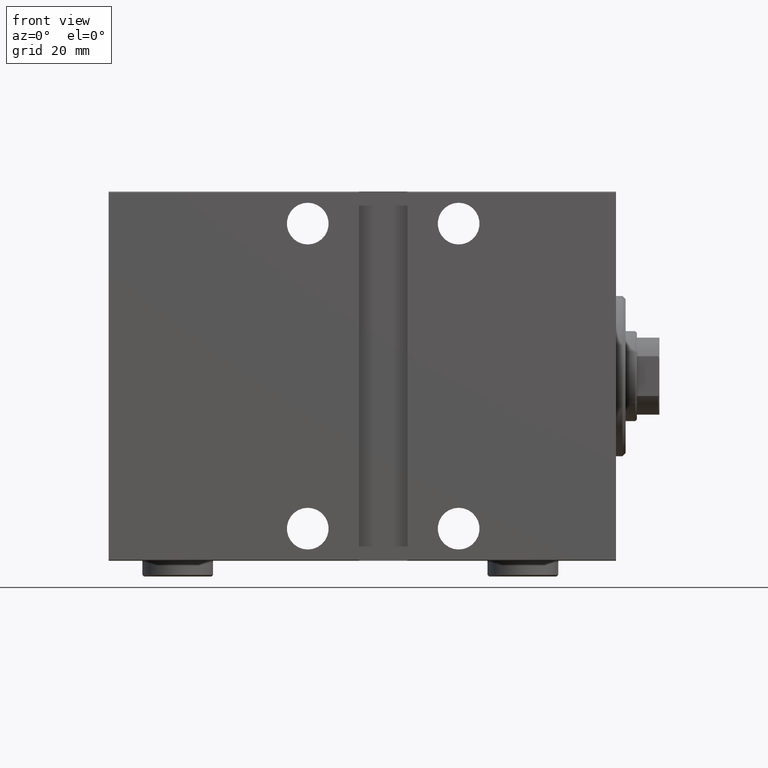
[diagram: clean part render]
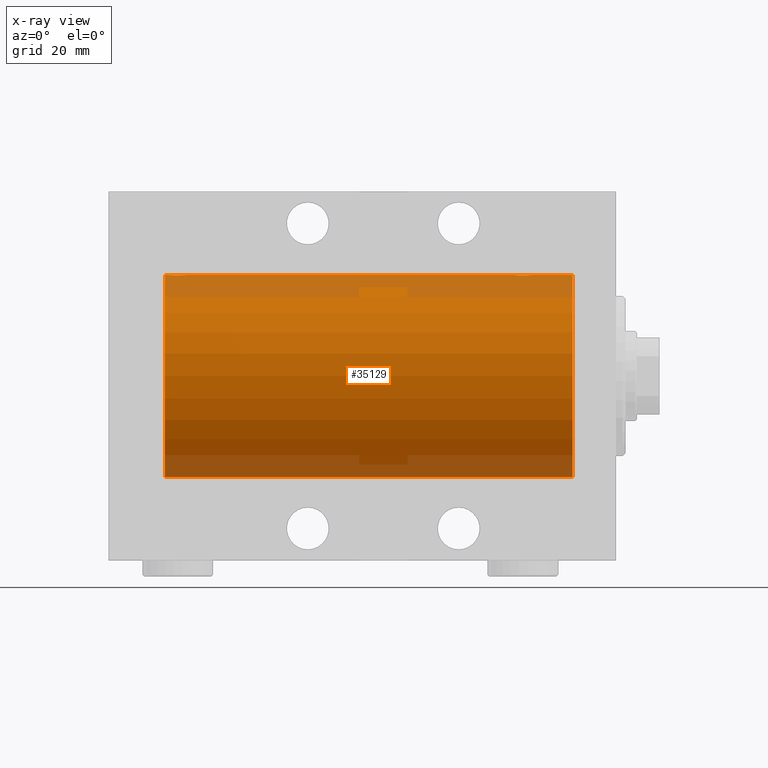
[diagram: x-ray — body ghosted, one internal face saturated and labeled with its STEP entity id]
A machine part, front view, then the same camera in x-ray: the body is ghosted and one INTERNAL B-rep face — a face not visible from any outside direction — is saturated and labeled: STEP entity #35129.
In plain terms, the highlighted cylindrical surface (partial cylindrical patch) has radius 31.5 mm, axis along (1, 0, -0).
Its self-contained STEP definition (entity closure, byte-faithful):
#347 = CARTESIAN_POINT ( 'NONE',  ( 133.8976413038693920, 1.505293155307504183, 31.46443304312125022 ) ) ;
#661 = CARTESIAN_POINT ( 'NONE',  ( 140.5000000000000000, 0.000000000000000000, 0.000000000000000000 ) ) ;
#879 = DIRECTION ( 'NONE',  ( -1.000000000000000000, 0.000000000000000000, 0.000000000000000000 ) ) ;
#1004 = CARTESIAN_POINT ( 'NONE',  ( 31.38591626639475862, 1.829162098167824713, 31.44727042639135206 ) ) ;
#1201 = VECTOR ( 'NONE', #6672, 1000.000000000000000 ) ;
#1227 = CARTESIAN_POINT ( 'NONE',  ( 133.5196296453370621, 0.3947854228308210756, 31.49811339059598581 ) ) ;
#1730 = CARTESIAN_POINT ( 'NONE',  ( 13.50000000000001243, 3.857637417314162689E-15, -31.50000000000000000 ) ) ;
#2102 = CARTESIAN_POINT ( 'NONE',  ( 26.09639262129909909, 0.7794402936641343649, 31.49094275383854225 ) ) ;
#2538 = CARTESIAN_POINT ( 'NONE',  ( 140.5000000000000000, 3.857637417314162689E-15, -31.50000000000000000 ) ) ;
#3686 = CARTESIAN_POINT ( 'NONE',  ( 133.6531399839437597, 0.9664718879465937773, 31.48569500832682522 ) ) ;
#4101 = DIRECTION ( 'NONE',  ( 0.000000000000000000, 0.000000000000000000, 1.000000000000000000 ) ) ;
#4352 = CARTESIAN_POINT ( 'NONE',  ( 138.7592490337673894, 1.983444873066710468, 31.43779820687993976 ) ) ;
#4353 = CARTESIAN_POINT ( 'NONE',  ( 31.84649213527307410, 0.9675486622706128692, 31.48566161620711767 ) ) ;
#6073 = ORIENTED_EDGE ( 'NONE', *, *, #11442, .T. ) ;
#6205 = ORIENTED_EDGE ( 'NONE', *, *, #41350, .T. ) ;
#6665 = LINE ( 'NONE', #14059, #14687 ) ;
#6672 = DIRECTION ( 'NONE',  ( -1.000000000000000000, -0.000000000000000000, -0.000000000000000000 ) ) ;
#6773 = CARTESIAN_POINT ( 'NONE',  ( 140.5000000000000000, 0.000000000000000000, 31.50000000000000000 ) ) ;
#7499 = CARTESIAN_POINT ( 'NONE',  ( 134.1148804265178569, 1.830131931565282866, 31.44721086712685931 ) ) ;
#7500 = CARTESIAN_POINT ( 'NONE',  ( 29.19688046033348172, 2.999928894260104784, 31.35682424344752306 ) ) ;
#7559 = EDGE_CURVE ( 'NONE', #21966, #12562, #14291, .T. ) ;
#7731 = CARTESIAN_POINT ( 'NONE',  ( 137.4681616584070980, 2.846197268611689868, 31.37124163027858614 ) ) ;
#7941 = CARTESIAN_POINT ( 'NONE',  ( 27.67111044284134991, 2.696796994793645652, 31.38443855856933595 ) ) ;
#8159 = CARTESIAN_POINT ( 'NONE',  ( 136.6968804603335457, 2.999928894260101675, 31.35682424344752306 ) ) ;
#9640 = CARTESIAN_POINT ( 'NONE',  ( 139.5000000000000000, -9.720114367098934135E-16, 31.50000000000000000 ) ) ;
#9740 = ORIENTED_EDGE ( 'NONE', *, *, #23802, .T. ) ;
#10648 = CARTESIAN_POINT ( 'NONE',  ( 31.60366586440800063, 1.503114925126265433, 31.46454030768325438 ) ) ;
#10782 = ORIENTED_EDGE ( 'NONE', *, *, #44343, .F. ) ;
#10863 = CARTESIAN_POINT ( 'NONE',  ( 31.25924903376736808, 1.983444873066717129, 31.43779820687993976 ) ) ;
#11085 = CARTESIAN_POINT ( 'NONE',  ( 136.3052925072517212, 3.000070712257540073, 31.35681067529873189 ) ) ;
#11312 = CARTESIAN_POINT ( 'NONE',  ( 28.60640401948892020, 2.980533683278890233, 31.35869737338551388 ) ) ;
#11442 = EDGE_CURVE ( 'NONE', #21811, #21966, #43713, .T. ) ;
#11488 = DIRECTION ( 'NONE',  ( -1.000000000000000000, 0.000000000000000000, 0.000000000000000000 ) ) ;
#11521 = CARTESIAN_POINT ( 'NONE',  ( 139.3464921352731096, 0.9675486622706127582, 31.48566161620712478 ) ) ;
#11522 = CARTESIAN_POINT ( 'NONE',  ( 31.90423806629733861, 0.7769457993854333999, 31.49100119919084051 ) ) ;
#11737 = CARTESIAN_POINT ( 'NONE',  ( 26.00000000000000355, -2.117263226567934635E-23, 31.50000000000000000 ) ) ;
#12479 = CIRCLE ( 'NONE', #15361, 31.50000000000000000 ) ;
#12562 = VERTEX_POINT ( 'NONE', #33553 ) ;
#12756 = CARTESIAN_POINT ( 'NONE',  ( 140.5000000000000000, 3.857637417314162689E-15, -31.50000000000000000 ) ) ;
#13110 = CARTESIAN_POINT ( 'NONE',  ( 139.5000000000000000, -9.720114367098934135E-16, 31.50000000000000000 ) ) ;
#13518 = CARTESIAN_POINT ( 'NONE',  ( 140.5000000000000000, 0.000000000000000000, 0.000000000000000000 ) ) ;
#14003 = CARTESIAN_POINT ( 'NONE',  ( 138.8859162663947302, 1.829162098167824491, 31.44727042639135917 ) ) ;
#14059 = CARTESIAN_POINT ( 'NONE',  ( 140.5000000000000000, 0.000000000000000000, 31.50000000000000000 ) ) ;
#14279 = DIRECTION ( 'NONE',  ( -1.000000000000000000, -0.000000000000000000, -0.000000000000000000 ) ) ;
#14291 = B_SPLINE_CURVE_WITH_KNOTS ( 'NONE', 3,
 ( #13110, #24316, #42070, #17596, #11521, #17818, #38916, #14003, #4352, #41849, #20958, #38486, #41627, #7731, #17364, #31508, #8159, #11085, #25198, #18034, #21842, #38041, #24755, #27920, #14890, #28363, #7499, #347, #31945, #3686, #31295, #1227, #14446, #31068 ),
 .UNSPECIFIED., .F., .F.,
 ( 4, 2, 2, 2, 2, 2, 2, 2, 2, 2, 2, 2, 2, 2, 2, 2, 4 ),
 ( 9.445319204176894989E-19, 0.0005865426616959173610, 0.001173085323391833855, 0.001759627985087750240, 0.002346170646783666408, 0.002932713308479583010, 0.003519255970175499178, 0.004105798631871415347, 0.004692341293567331949, 0.005278883955263248551, 0.005865426616959165153, 0.006451969278655080887, 0.007038511940350997489, 0.007625054602046914091, 0.008211597263742830694, 0.008798139925438748163, 0.009384682587134663898 ),
 .UNSPECIFIED. ) ;
#14364 = ORIENTED_EDGE ( 'NONE', *, *, #27284, .F. ) ;
#14446 = CARTESIAN_POINT ( 'NONE',  ( 133.5000000000000000, 0.1958503357044827364, 31.50000000000000711 ) ) ;
#14670 = CARTESIAN_POINT ( 'NONE',  ( 29.77897008593146211, 2.903824817694239613, 31.36589387714388266 ) ) ;
#14687 = VECTOR ( 'NONE', #14279, 1000.000000000000000 ) ;
#14861 = CARTESIAN_POINT ( 'NONE',  ( 13.50000000000001243, 0.000000000000000000, 0.000000000000000000 ) ) ;
#14890 = CARTESIAN_POINT ( 'NONE',  ( 134.5191130087499118, 2.261707786034449441, 31.41901301017587755 ) ) ;
#15361 = AXIS2_PLACEMENT_3D ( 'NONE', #14861, #11488, #4101 ) ;
#15454 = EDGE_CURVE ( 'NONE', #18993, #25948, #6665, .T. ) ;
#17364 = CARTESIAN_POINT ( 'NONE',  ( 137.2789700859314621, 2.903824817694236948, 31.36589387714387556 ) ) ;
#17365 = CARTESIAN_POINT ( 'NONE',  ( 30.32915601165002784, 2.696575640577657751, 31.38445666459465500 ) ) ;
#17427 = LINE ( 'NONE', #27763, #1201 ) ;
#17596 = CARTESIAN_POINT ( 'NONE',  ( 139.4042380662974097, 0.7769457993854324007, 31.49100119919085472 ) ) ;
#17734 = CIRCLE ( 'NONE', #39154, 31.50000000000000000 ) ;
#17818 = CARTESIAN_POINT ( 'NONE',  ( 139.1958397180050042, 1.330832861354131813, 31.47239936387596870 ) ) ;
#18034 = CARTESIAN_POINT ( 'NONE',  ( 135.7215416052334547, 2.903876953428278007, 31.36588880666517909 ) ) ;
#18905 = CARTESIAN_POINT ( 'NONE',  ( 27.17061414532871311, 2.385694485610540649, 31.40971707706042437 ) ) ;
#18993 = VERTEX_POINT ( 'NONE', #29236 ) ;
#20904 = EDGE_LOOP ( 'NONE', ( #14364, #10782, #6073, #38993, #6205, #9740, #28657, #39930 ) ) ;
#20920 = CYLINDRICAL_SURFACE ( 'NONE', #43277, 31.50000000000000000 ) ;
#20958 = CARTESIAN_POINT ( 'NONE',  ( 138.3315883602736562, 2.384155341399021744, 31.40983767558391193 ) ) ;
#21054 = DIRECTION ( 'NONE',  ( 0.000000000000000000, 0.000000000000000000, 1.000000000000000000 ) ) ;
#21622 = CARTESIAN_POINT ( 'NONE',  ( 32.00000000000000000, -4.480989031009259614E-16, 31.50000000000000000 ) ) ;
#21811 = VERTEX_POINT ( 'NONE', #6773 ) ;
#21842 = CARTESIAN_POINT ( 'NONE',  ( 135.5344721955793545, 2.847177118681585739, 31.37115363072576102 ) ) ;
#21966 = VERTEX_POINT ( 'NONE', #9640 ) ;
#22496 = CARTESIAN_POINT ( 'NONE',  ( 26.61488042651788533, 1.830131931565285086, 31.44721086712686642 ) ) ;
#22724 = CARTESIAN_POINT ( 'NONE',  ( 26.39764130386935292, 1.505293155307505071, 31.46443304312125022 ) ) ;
#23802 = EDGE_CURVE ( 'NONE', #41268, #18993, #40439, .T. ) ;
#24316 = CARTESIAN_POINT ( 'NONE',  ( 139.4999999999999716, 0.1983379036618955482, 31.50000000000000000 ) ) ;
#24530 = CARTESIAN_POINT ( 'NONE',  ( 30.98257411773193581, 2.260013192167882767, 31.41912713670169666 ) ) ;
#24566 = VECTOR ( 'NONE', #38310, 1000.000000000000000 ) ;
#24755 = CARTESIAN_POINT ( 'NONE',  ( 134.9955765329607402, 2.602863964129810803, 31.39246667950590464 ) ) ;
#24982 = CARTESIAN_POINT ( 'NONE',  ( 28.22154160523339783, 2.903876953428278895, 31.36588880666518619 ) ) ;
#25198 = CARTESIAN_POINT ( 'NONE',  ( 136.1064040194889344, 2.980533683278888901, 31.35869737338551388 ) ) ;
#25199 = CARTESIAN_POINT ( 'NONE',  ( 31.69583971800497224, 1.330832861354133145, 31.47239936387597581 ) ) ;
#25422 = CARTESIAN_POINT ( 'NONE',  ( 26.73894082546058470, 1.981627308739912996, 31.43792063499535061 ) ) ;
#25651 = CARTESIAN_POINT ( 'NONE',  ( 26.00000000000001066, 0.1958503357044831805, 31.50000000000001421 ) ) ;
#25659 = VERTEX_POINT ( 'NONE', #1730 ) ;
#25948 = VERTEX_POINT ( 'NONE', #32796 ) ;
#26093 = CARTESIAN_POINT ( 'NONE',  ( 26.15313998394374195, 0.9664718879465923340, 31.48569500832682522 ) ) ;
#27284 = EDGE_CURVE ( 'NONE', #33400, #25659, #28554, .T. ) ;
#27701 = CARTESIAN_POINT ( 'NONE',  ( 30.83158836027363847, 2.384155341399025740, 31.40983767558391193 ) ) ;
#27763 = CARTESIAN_POINT ( 'NONE',  ( 140.5000000000000000, 0.000000000000000000, 31.50000000000000000 ) ) ;
#27920 = CARTESIAN_POINT ( 'NONE',  ( 134.6706141453286989, 2.385694485610532212, 31.40971707706042437 ) ) ;
#28363 = CARTESIAN_POINT ( 'NONE',  ( 134.2389408254605883, 1.981627308739901450, 31.43792063499535061 ) ) ;
#28364 = CARTESIAN_POINT ( 'NONE',  ( 29.39162658774828785, 2.980875975682597989, 31.35866508162785848 ) ) ;
#28554 = LINE ( 'NONE', #12756, #37090 ) ;
#28657 = ORIENTED_EDGE ( 'NONE', *, *, #15454, .T. ) ;
#28792 = CARTESIAN_POINT ( 'NONE',  ( 26.30368186223716975, 1.329867798385262700, 31.47244047903476627 ) ) ;
#29236 = CARTESIAN_POINT ( 'NONE',  ( 26.00000000000000355, -2.117263226567934635E-23, 31.50000000000000000 ) ) ;
#29799 = CARTESIAN_POINT ( 'NONE',  ( 32.00000000000000000, -4.480989031009259614E-16, 31.50000000000000000 ) ) ;
#31068 = CARTESIAN_POINT ( 'NONE',  ( 133.5000000000000000, -2.118130973563677748E-23, 31.50000000000000000 ) ) ;
#31069 = CARTESIAN_POINT ( 'NONE',  ( 29.96816165840710156, 2.846197268611692532, 31.37124163027860035 ) ) ;
#31295 = CARTESIAN_POINT ( 'NONE',  ( 133.5963926212991453, 0.7794402936641343649, 31.49094275383853514 ) ) ;
#31508 = CARTESIAN_POINT ( 'NONE',  ( 136.8916265877483056, 2.980875975682595325, 31.35866508162785138 ) ) ;
#31726 = CARTESIAN_POINT ( 'NONE',  ( 32.00000000000000711, 0.1983379036618947711, 31.49999999999999289 ) ) ;
#31945 = CARTESIAN_POINT ( 'NONE',  ( 133.8036818622371698, 1.329867798385263589, 31.47244047903475916 ) ) ;
#32796 = CARTESIAN_POINT ( 'NONE',  ( 13.50000000000001243, 0.000000000000000000, 31.50000000000000000 ) ) ;
#32830 = CARTESIAN_POINT ( 'NONE',  ( 27.49557653296075443, 2.602863964129817020, 31.39246667950590464 ) ) ;
#33400 = VERTEX_POINT ( 'NONE', #2538 ) ;
#33553 = CARTESIAN_POINT ( 'NONE',  ( 133.5000000000000000, -2.118130973563677748E-23, 31.50000000000000000 ) ) ;
#34851 = DIRECTION ( 'NONE',  ( -1.000000000000000000, -0.000000000000000000, -0.000000000000000000 ) ) ;
#35111 = CARTESIAN_POINT ( 'NONE',  ( 31.98052481897509125, 0.3933386891556666098, 31.49812829325316343 ) ) ;
#35129 = ADVANCED_FACE ( 'NONE', ( #40923 ), #20920, .F. ) ;
#36188 = EDGE_CURVE ( 'NONE', #25948, #25659, #12479, .T. ) ;
#37090 = VECTOR ( 'NONE', #42260, 1000.000000000000000 ) ;
#37560 = DIRECTION ( 'NONE',  ( 0.000000000000000000, 0.000000000000000000, 1.000000000000000000 ) ) ;
#38041 = CARTESIAN_POINT ( 'NONE',  ( 135.1711104428413819, 2.696796994793643876, 31.38443855856934306 ) ) ;
#38258 = CARTESIAN_POINT ( 'NONE',  ( 30.50363134844576862, 2.603460270751702499, 31.39242096616744959 ) ) ;
#38310 = DIRECTION ( 'NONE',  ( -1.000000000000000000, -0.000000000000000000, -0.000000000000000000 ) ) ;
#38486 = CARTESIAN_POINT ( 'NONE',  ( 138.0036313484457935, 2.603460270751699390, 31.39242096616744249 ) ) ;
#38705 = CARTESIAN_POINT ( 'NONE',  ( 28.03447219557934744, 2.847177118681587515, 31.37115363072576102 ) ) ;
#38916 = CARTESIAN_POINT ( 'NONE',  ( 139.1036658644080433, 1.503114925126266321, 31.46454030768326149 ) ) ;
#38993 = ORIENTED_EDGE ( 'NONE', *, *, #7559, .T. ) ;
#39141 = CARTESIAN_POINT ( 'NONE',  ( 26.01962964533703726, 0.3947854228308206870, 31.49811339059599291 ) ) ;
#39154 = AXIS2_PLACEMENT_3D ( 'NONE', #661, #879, #21054 ) ;
#39930 = ORIENTED_EDGE ( 'NONE', *, *, #36188, .T. ) ;
#40439 = B_SPLINE_CURVE_WITH_KNOTS ( 'NONE', 3,
 ( #21622, #31726, #35111, #11522, #4353, #25199, #10648, #1004, #10863, #24530, #27701, #38258, #17365, #31069, #14670, #28364, #7500, #42071, #11312, #24982, #38705, #7941, #32830, #18905, #42724, #25422, #22496, #22724, #28792, #26093, #2102, #39141, #25651, #11737 ),
 .UNSPECIFIED., .F., .F.,
 ( 4, 2, 2, 2, 2, 2, 2, 2, 2, 2, 2, 2, 2, 2, 2, 2, 4 ),
 ( 1.580622136457331310E-18, 0.0005865426616959182283, 0.001173085323391834722, 0.001759627985087751107, 0.002346170646783668143, 0.002932713308479584745, 0.003519255970175500913, 0.004105798631871417081, 0.004692341293567334551, 0.005278883955263251153, 0.005865426616959167755, 0.006451969278655083490, 0.007038511940351000092, 0.007625054602046918428, 0.008211597263742835898, 0.008798139925438753367, 0.009384682587134670836 ),
 .UNSPECIFIED. ) ;
#40923 = FACE_OUTER_BOUND ( 'NONE', #20904, .T. ) ;
#41268 = VERTEX_POINT ( 'NONE', #29799 ) ;
#41350 = EDGE_CURVE ( 'NONE', #12562, #41268, #17427, .T. ) ;
#41627 = CARTESIAN_POINT ( 'NONE',  ( 137.8291560116500136, 2.696575640577657307, 31.38445666459465500 ) ) ;
#41849 = CARTESIAN_POINT ( 'NONE',  ( 138.4825741177319856, 2.260013192167877438, 31.41912713670170376 ) ) ;
#42070 = CARTESIAN_POINT ( 'NONE',  ( 139.4805248189751126, 0.3933386891556659992, 31.49812829325316343 ) ) ;
#42071 = CARTESIAN_POINT ( 'NONE',  ( 28.80529250725174606, 3.000070712257541850, 31.35681067529873189 ) ) ;
#42260 = DIRECTION ( 'NONE',  ( -1.000000000000000000, -0.000000000000000000, -0.000000000000000000 ) ) ;
#42724 = CARTESIAN_POINT ( 'NONE',  ( 27.01911300874992961, 2.261707786034460099, 31.41901301017587755 ) ) ;
#42847 = CARTESIAN_POINT ( 'NONE',  ( 140.5000000000000000, 0.000000000000000000, 31.50000000000000000 ) ) ;
#43277 = AXIS2_PLACEMENT_3D ( 'NONE', #13518, #34851, #37560 ) ;
#43713 = LINE ( 'NONE', #42847, #24566 ) ;
#44343 = EDGE_CURVE ( 'NONE', #21811, #33400, #17734, .T. ) ;